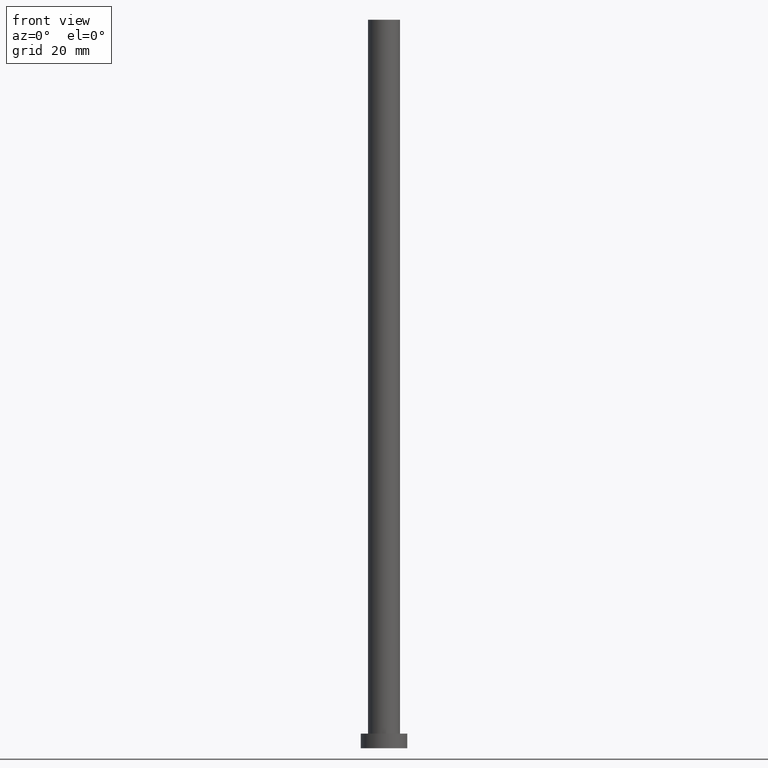
[diagram: clean part render]
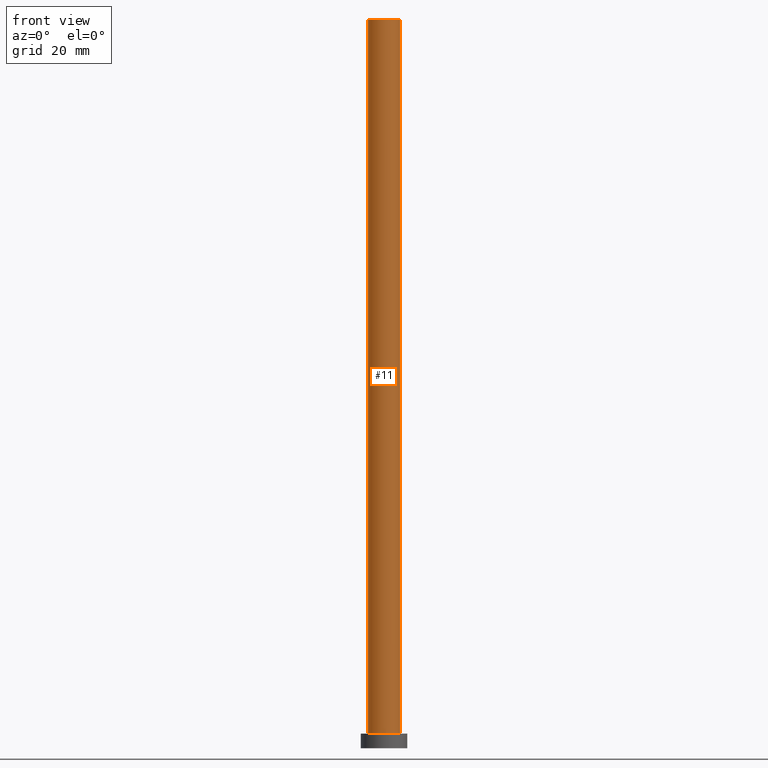
[diagram: same view with one face highlighted and labeled with its STEP entity id]
A machine part, front view. The second image highlights one B-rep face of the part: STEP entity #11.
In plain terms, the highlighted cylindrical surface (edge-blend (fillet) strip) has radius 5.5 mm, axis along (-0, -0, -1).
Its self-contained STEP definition (entity closure, byte-faithful):
#9 = AXIS2_PLACEMENT_3D ( 'NONE', #80, #202, #172 ) ;
#11 = ADVANCED_FACE ( 'NONE', ( #228 ), #148, .T. ) ;
#12 = LINE ( 'NONE', #222, #20 ) ;
#13 = CARTESIAN_POINT ( 'NONE',  ( 0.000000000000000000, 0.000000000000000000, 250.0000000000000000 ) ) ;
#16 = CARTESIAN_POINT ( 'NONE',  ( -5.500000000000000000, 0.000000000000000000, 250.0000000000000000 ) ) ;
#20 = VECTOR ( 'NONE', #81, 1000.000000000000000 ) ;
#29 = VERTEX_POINT ( 'NONE', #126 ) ;
#37 = EDGE_CURVE ( 'NONE', #209, #152, #121, .T. ) ;
#39 = ORIENTED_EDGE ( 'NONE', *, *, #108, .T. ) ;
#52 = CARTESIAN_POINT ( 'NONE',  ( 5.500000000000000000, 6.735557395310442023E-16, 250.0000000000000000 ) ) ;
#62 = AXIS2_PLACEMENT_3D ( 'NONE', #247, #73, #70 ) ;
#70 = DIRECTION ( 'NONE',  ( 1.000000000000000000, 0.000000000000000000, 0.000000000000000000 ) ) ;
#72 = EDGE_CURVE ( 'NONE', #152, #99, #12, .T. ) ;
#73 = DIRECTION ( 'NONE',  ( 0.000000000000000000, 0.000000000000000000, 1.000000000000000000 ) ) ;
#77 = DIRECTION ( 'NONE',  ( -1.000000000000000000, 0.000000000000000000, 0.000000000000000000 ) ) ;
#79 = ORIENTED_EDGE ( 'NONE', *, *, #37, .F. ) ;
#80 = CARTESIAN_POINT ( 'NONE',  ( 0.000000000000000000, 0.000000000000000000, 250.0000000000000000 ) ) ;
#81 = DIRECTION ( 'NONE',  ( -0.000000000000000000, -0.000000000000000000, -1.000000000000000000 ) ) ;
#87 = CARTESIAN_POINT ( 'NONE',  ( -5.500000000000000000, 0.000000000000000000, 250.0000000000000000 ) ) ;
#92 = AXIS2_PLACEMENT_3D ( 'NONE', #13, #106, #77 ) ;
#98 = EDGE_LOOP ( 'NONE', ( #131, #79, #101, #39 ) ) ;
#99 = VERTEX_POINT ( 'NONE', #116 ) ;
#101 = ORIENTED_EDGE ( 'NONE', *, *, #129, .T. ) ;
#106 = DIRECTION ( 'NONE',  ( -0.000000000000000000, -0.000000000000000000, -1.000000000000000000 ) ) ;
#108 = EDGE_CURVE ( 'NONE', #29, #99, #117, .T. ) ;
#111 = VECTOR ( 'NONE', #134, 1000.000000000000000 ) ;
#113 = LINE ( 'NONE', #16, #111 ) ;
#116 = CARTESIAN_POINT ( 'NONE',  ( 5.500000000000000000, 6.735557395310442023E-16, 5.000000000000000000 ) ) ;
#117 = CIRCLE ( 'NONE', #62, 5.500000000000000000 ) ;
#121 = CIRCLE ( 'NONE', #9, 5.500000000000000000 ) ;
#126 = CARTESIAN_POINT ( 'NONE',  ( -5.500000000000000000, 0.000000000000000000, 5.000000000000000000 ) ) ;
#129 = EDGE_CURVE ( 'NONE', #209, #29, #113, .T. ) ;
#131 = ORIENTED_EDGE ( 'NONE', *, *, #72, .F. ) ;
#134 = DIRECTION ( 'NONE',  ( -0.000000000000000000, -0.000000000000000000, -1.000000000000000000 ) ) ;
#148 = CYLINDRICAL_SURFACE ( 'NONE', #92, 5.500000000000000000 ) ;
#152 = VERTEX_POINT ( 'NONE', #52 ) ;
#172 = DIRECTION ( 'NONE',  ( 1.000000000000000000, 0.000000000000000000, 0.000000000000000000 ) ) ;
#202 = DIRECTION ( 'NONE',  ( 0.000000000000000000, 0.000000000000000000, 1.000000000000000000 ) ) ;
#209 = VERTEX_POINT ( 'NONE', #87 ) ;
#222 = CARTESIAN_POINT ( 'NONE',  ( 5.500000000000000000, 6.735557395310442023E-16, 250.0000000000000000 ) ) ;
#228 = FACE_OUTER_BOUND ( 'NONE', #98, .T. ) ;
#247 = CARTESIAN_POINT ( 'NONE',  ( 0.000000000000000000, 0.000000000000000000, 5.000000000000000000 ) ) ;